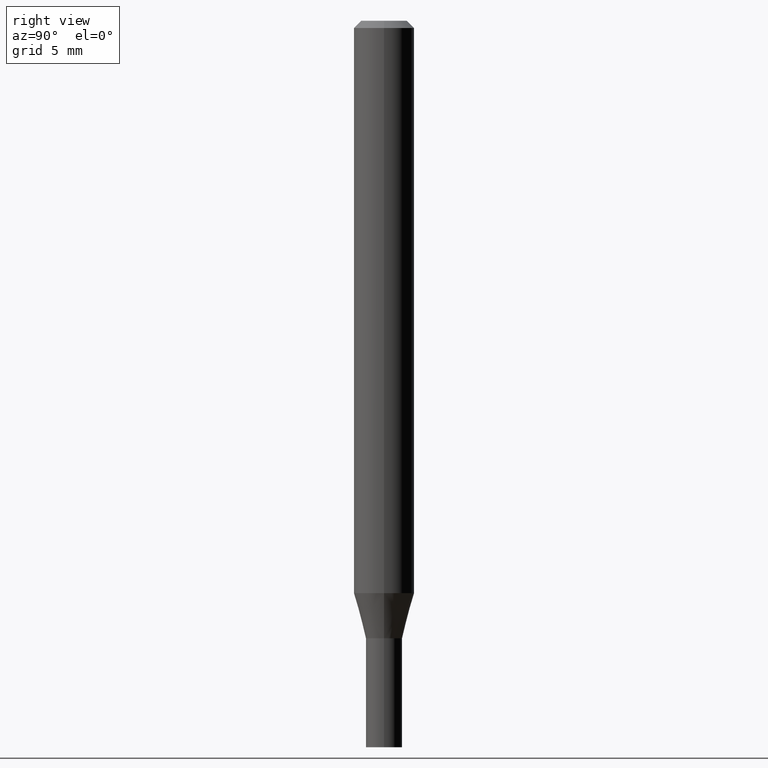
[diagram: clean part render]
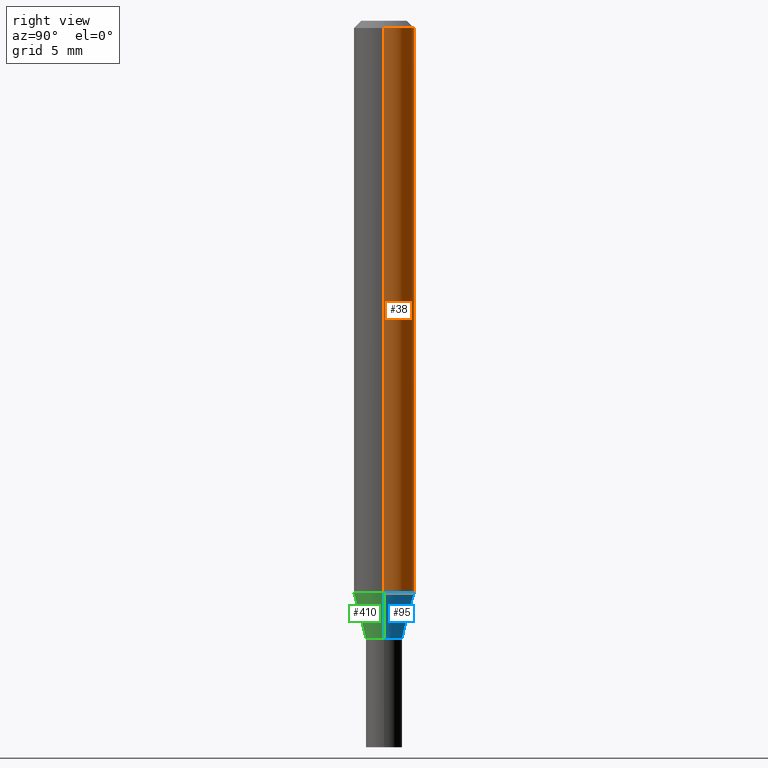
[diagram: same view with three faces highlighted in distinct colors, each labeled with its STEP entity id]
A machine part, right view with three faces highlighted in distinct colors.
Their STEP definitions:

[orange] entity #38 — the highlighted cylindrical surface (edge-blend (fillet) strip) has radius 1.5875 mm, axis along (-0, 0, 1).
#9 = CARTESIAN_POINT ( 'NONE',  ( 0.000000000000000000, 0.000000000000000000, 0.000000000000000000 ) ) ;
#23 = VERTEX_POINT ( 'NONE', #336 ) ;
#38 = ADVANCED_FACE ( 'NONE', ( #256 ), #364, .T. ) ;
#57 = ORIENTED_EDGE ( 'NONE', *, *, #221, .T. ) ;
#59 = CARTESIAN_POINT ( 'NONE',  ( -0.06250000000000000000, 4.440892098500626162E-16, -3.074334431409316114E-30 ) ) ;
#61 = CARTESIAN_POINT ( 'NONE',  ( 2.889807382060853894E-29, -4.125879063268977343E-15, -1.181698729810777282 ) ) ;
#66 = CARTESIAN_POINT ( 'NONE',  ( -0.06250000000000000000, -1.645036431825749595E-15, -0.01499999999999999944 ) ) ;
#68 = VERTEX_POINT ( 'NONE', #116 ) ;
#84 = AXIS2_PLACEMENT_3D ( 'NONE', #9, #401, #153 ) ;
#108 = VECTOR ( 'NONE', #315, 39.37007874015748143 ) ;
#116 = CARTESIAN_POINT ( 'NONE',  ( 0.06250000000000000000, -4.888073874380388472E-16, -0.01499999999999999944 ) ) ;
#135 = LINE ( 'NONE', #421, #290 ) ;
#139 = CARTESIAN_POINT ( 'NONE',  ( 3.668203209277705088E-31, -5.237222008264718399E-17, -0.01499999999999999944 ) ) ;
#142 = AXIS2_PLACEMENT_3D ( 'NONE', #139, #199, #163 ) ;
#153 = DIRECTION ( 'NONE',  ( 1.000000000000000000, -6.982962677686266711E-15, 4.876176775795935793E-29 ) ) ;
#162 = VERTEX_POINT ( 'NONE', #66 ) ;
#163 = DIRECTION ( 'NONE',  ( 1.000000000000000000, -6.982962677686266711E-15, 0.000000000000000000 ) ) ;
#165 = ORIENTED_EDGE ( 'NONE', *, *, #389, .F. ) ;
#182 = CIRCLE ( 'NONE', #142, 0.06250000000000000000 ) ;
#195 = AXIS2_PLACEMENT_3D ( 'NONE', #61, #452, #202 ) ;
#199 = DIRECTION ( 'NONE',  ( -2.445468806185136597E-29, 3.491481338843145583E-15, 1.000000000000000000 ) ) ;
#202 = DIRECTION ( 'NONE',  ( 1.000000000000000000, -6.982962677686270655E-15, 0.000000000000000000 ) ) ;
#221 = EDGE_CURVE ( 'NONE', #23, #162, #461, .T. ) ;
#238 = EDGE_LOOP ( 'NONE', ( #312, #57, #268, #165 ) ) ;
#244 = DIRECTION ( 'NONE',  ( -2.445468806185136877E-29, 3.491481338843145188E-15, 1.000000000000000000 ) ) ;
#248 = CIRCLE ( 'NONE', #195, 0.06250000000000000000 ) ;
#256 = FACE_OUTER_BOUND ( 'NONE', #238, .T. ) ;
#268 = ORIENTED_EDGE ( 'NONE', *, *, #350, .F. ) ;
#290 = VECTOR ( 'NONE', #244, 39.37007874015748143 ) ;
#312 = ORIENTED_EDGE ( 'NONE', *, *, #368, .T. ) ;
#315 = DIRECTION ( 'NONE',  ( -2.445468806185136877E-29, 3.491481338843145188E-15, 1.000000000000000000 ) ) ;
#336 = CARTESIAN_POINT ( 'NONE',  ( -0.06250000000000000000, -3.681789853418914727E-15, -1.181698729810777282 ) ) ;
#350 = EDGE_CURVE ( 'NONE', #68, #162, #182, .T. ) ;
#364 = CYLINDRICAL_SURFACE ( 'NONE', #84, 0.06250000000000000000 ) ;
#368 = EDGE_CURVE ( 'NONE', #388, #23, #248, .T. ) ;
#388 = VERTEX_POINT ( 'NONE', #425 ) ;
#389 = EDGE_CURVE ( 'NONE', #388, #68, #135, .T. ) ;
#401 = DIRECTION ( 'NONE',  ( -2.445468806185136597E-29, 3.491481338843145583E-15, 1.000000000000000000 ) ) ;
#421 = CARTESIAN_POINT ( 'NONE',  ( 0.06250000000000000000, -4.364351673553916694E-16, 3.047610484872459871E-30 ) ) ;
#425 = CARTESIAN_POINT ( 'NONE',  ( 0.06250000000000000000, -4.562314230624369013E-15, -1.181698729810777282 ) ) ;
#452 = DIRECTION ( 'NONE',  ( -2.445468806185136597E-29, 3.491481338843145583E-15, 1.000000000000000000 ) ) ;
#461 = LINE ( 'NONE', #59, #108 ) ;

[blue] entity #95 — the highlighted conical surface has half-angle 15 deg.
#23 = VERTEX_POINT ( 'NONE', #336 ) ;
#31 = AXIS2_PLACEMENT_3D ( 'NONE', #125, #274, #414 ) ;
#47 = EDGE_CURVE ( 'NONE', #201, #23, #298, .T. ) ;
#58 = DIRECTION ( 'NONE',  ( 0.2588190451025216277, 1.565188264969619995E-15, 0.9659258262890679791 ) ) ;
#61 = CARTESIAN_POINT ( 'NONE',  ( 2.889807382060853894E-29, -4.125879063268977343E-15, -1.181698729810777282 ) ) ;
#77 = CARTESIAN_POINT ( 'NONE',  ( -0.03749999999999965167, -4.185185181114976549E-15, -1.275000000000000133 ) ) ;
#89 = ORIENTED_EDGE ( 'NONE', *, *, #47, .T. ) ;
#95 = ADVANCED_FACE ( 'NONE', ( #387 ), #180, .T. ) ;
#122 = CARTESIAN_POINT ( 'NONE',  ( -0.03749999999999965167, -3.933487517266945244E-15, -1.275000000000000133 ) ) ;
#125 = CARTESIAN_POINT ( 'NONE',  ( 3.117972727886049049E-29, -4.451638707025011594E-15, -1.275000000000000133 ) ) ;
#131 = LINE ( 'NONE', #374, #224 ) ;
#160 = ORIENTED_EDGE ( 'NONE', *, *, #337, .T. ) ;
#167 = CARTESIAN_POINT ( 'NONE',  ( 3.117972727886049049E-29, -4.451638707025011594E-15, -1.275000000000000133 ) ) ;
#180 = CONICAL_SURFACE ( 'NONE', #407, 0.03749999999999965167, 0.2617993877991502960 ) ;
#185 = ORIENTED_EDGE ( 'NONE', *, *, #261, .F. ) ;
#195 = AXIS2_PLACEMENT_3D ( 'NONE', #61, #452, #202 ) ;
#201 = VERTEX_POINT ( 'NONE', #122 ) ;
#202 = DIRECTION ( 'NONE',  ( 1.000000000000000000, -6.982962677686270655E-15, 0.000000000000000000 ) ) ;
#224 = VECTOR ( 'NONE', #58, 39.37007874015748143 ) ;
#231 = VERTEX_POINT ( 'NONE', #267 ) ;
#248 = CIRCLE ( 'NONE', #195, 0.06250000000000000000 ) ;
#261 = EDGE_CURVE ( 'NONE', #231, #388, #131, .T. ) ;
#267 = CARTESIAN_POINT ( 'NONE',  ( 0.03749999999999965167, -4.713499807438243440E-15, -1.275000000000000133 ) ) ;
#274 = DIRECTION ( 'NONE',  ( -2.445468806185136597E-29, 3.491481338843145583E-15, 1.000000000000000000 ) ) ;
#282 = ORIENTED_EDGE ( 'NONE', *, *, #368, .F. ) ;
#298 = LINE ( 'NONE', #77, #433 ) ;
#308 = EDGE_LOOP ( 'NONE', ( #160, #89, #282, #185 ) ) ;
#336 = CARTESIAN_POINT ( 'NONE',  ( -0.06250000000000000000, -3.681789853418914727E-15, -1.181698729810777282 ) ) ;
#337 = EDGE_CURVE ( 'NONE', #231, #201, #362, .T. ) ;
#347 = DIRECTION ( 'NONE',  ( -2.445468806185136597E-29, 3.491481338843145583E-15, 1.000000000000000000 ) ) ;
#362 = CIRCLE ( 'NONE', #31, 0.03749999999999965167 ) ;
#368 = EDGE_CURVE ( 'NONE', #388, #23, #248, .T. ) ;
#374 = CARTESIAN_POINT ( 'NONE',  ( 0.03749999999999965167, -4.713499807438243440E-15, -1.275000000000000133 ) ) ;
#387 = FACE_OUTER_BOUND ( 'NONE', #308, .T. ) ;
#388 = VERTEX_POINT ( 'NONE', #425 ) ;
#407 = AXIS2_PLACEMENT_3D ( 'NONE', #167, #347, #419 ) ;
#414 = DIRECTION ( 'NONE',  ( 1.000000000000000000, -6.982962677686255667E-15, 0.000000000000000000 ) ) ;
#419 = DIRECTION ( 'NONE',  ( 1.000000000000000000, -6.982962677686255667E-15, 0.000000000000000000 ) ) ;
#425 = CARTESIAN_POINT ( 'NONE',  ( 0.06250000000000000000, -4.562314230624369013E-15, -1.181698729810777282 ) ) ;
#433 = VECTOR ( 'NONE', #440, 39.37007874015748143 ) ;
#440 = DIRECTION ( 'NONE',  ( -0.2588190451025216277, 5.211531920934551831E-15, 0.9659258262890679791 ) ) ;
#452 = DIRECTION ( 'NONE',  ( -2.445468806185136597E-29, 3.491481338843145583E-15, 1.000000000000000000 ) ) ;

[green] entity #410 — the highlighted conical surface has half-angle 15 deg.
#16 = CONICAL_SURFACE ( 'NONE', #111, 0.03749999999999965167, 0.2617993877991502960 ) ;
#23 = VERTEX_POINT ( 'NONE', #336 ) ;
#47 = EDGE_CURVE ( 'NONE', #201, #23, #298, .T. ) ;
#58 = DIRECTION ( 'NONE',  ( 0.2588190451025216277, 1.565188264969619995E-15, 0.9659258262890679791 ) ) ;
#77 = CARTESIAN_POINT ( 'NONE',  ( -0.03749999999999965167, -4.185185181114976549E-15, -1.275000000000000133 ) ) ;
#99 = DIRECTION ( 'NONE',  ( 1.000000000000000000, -6.982962677686255667E-15, 0.000000000000000000 ) ) ;
#111 = AXIS2_PLACEMENT_3D ( 'NONE', #178, #173, #463 ) ;
#122 = CARTESIAN_POINT ( 'NONE',  ( -0.03749999999999965167, -3.933487517266945244E-15, -1.275000000000000133 ) ) ;
#131 = LINE ( 'NONE', #374, #224 ) ;
#170 = CARTESIAN_POINT ( 'NONE',  ( 2.889807382060853894E-29, -4.125879063268977343E-15, -1.181698729810777282 ) ) ;
#173 = DIRECTION ( 'NONE',  ( -2.445468806185136597E-29, 3.491481338843145583E-15, 1.000000000000000000 ) ) ;
#178 = CARTESIAN_POINT ( 'NONE',  ( 3.117972727886049049E-29, -4.451638707025011594E-15, -1.275000000000000133 ) ) ;
#201 = VERTEX_POINT ( 'NONE', #122 ) ;
#209 = EDGE_CURVE ( 'NONE', #201, #231, #278, .T. ) ;
#211 = FACE_OUTER_BOUND ( 'NONE', #307, .T. ) ;
#224 = VECTOR ( 'NONE', #58, 39.37007874015748143 ) ;
#231 = VERTEX_POINT ( 'NONE', #267 ) ;
#261 = EDGE_CURVE ( 'NONE', #231, #388, #131, .T. ) ;
#265 = AXIS2_PLACEMENT_3D ( 'NONE', #170, #304, #380 ) ;
#267 = CARTESIAN_POINT ( 'NONE',  ( 0.03749999999999965167, -4.713499807438243440E-15, -1.275000000000000133 ) ) ;
#275 = CARTESIAN_POINT ( 'NONE',  ( 3.117972727886049049E-29, -4.451638707025011594E-15, -1.275000000000000133 ) ) ;
#278 = CIRCLE ( 'NONE', #464, 0.03749999999999965167 ) ;
#293 = EDGE_CURVE ( 'NONE', #23, #388, #303, .T. ) ;
#298 = LINE ( 'NONE', #77, #433 ) ;
#303 = CIRCLE ( 'NONE', #265, 0.06250000000000000000 ) ;
#304 = DIRECTION ( 'NONE',  ( -2.445468806185136597E-29, 3.491481338843145583E-15, 1.000000000000000000 ) ) ;
#307 = EDGE_LOOP ( 'NONE', ( #352, #450, #406, #322 ) ) ;
#322 = ORIENTED_EDGE ( 'NONE', *, *, #293, .F. ) ;
#336 = CARTESIAN_POINT ( 'NONE',  ( -0.06250000000000000000, -3.681789853418914727E-15, -1.181698729810777282 ) ) ;
#352 = ORIENTED_EDGE ( 'NONE', *, *, #47, .F. ) ;
#358 = DIRECTION ( 'NONE',  ( -2.445468806185136597E-29, 3.491481338843145583E-15, 1.000000000000000000 ) ) ;
#374 = CARTESIAN_POINT ( 'NONE',  ( 0.03749999999999965167, -4.713499807438243440E-15, -1.275000000000000133 ) ) ;
#380 = DIRECTION ( 'NONE',  ( 1.000000000000000000, -6.982962677686270655E-15, 0.000000000000000000 ) ) ;
#388 = VERTEX_POINT ( 'NONE', #425 ) ;
#406 = ORIENTED_EDGE ( 'NONE', *, *, #261, .T. ) ;
#410 = ADVANCED_FACE ( 'NONE', ( #211 ), #16, .T. ) ;
#425 = CARTESIAN_POINT ( 'NONE',  ( 0.06250000000000000000, -4.562314230624369013E-15, -1.181698729810777282 ) ) ;
#433 = VECTOR ( 'NONE', #440, 39.37007874015748143 ) ;
#440 = DIRECTION ( 'NONE',  ( -0.2588190451025216277, 5.211531920934551831E-15, 0.9659258262890679791 ) ) ;
#450 = ORIENTED_EDGE ( 'NONE', *, *, #209, .T. ) ;
#463 = DIRECTION ( 'NONE',  ( 1.000000000000000000, -6.982962677686255667E-15, 0.000000000000000000 ) ) ;
#464 = AXIS2_PLACEMENT_3D ( 'NONE', #275, #358, #99 ) ;